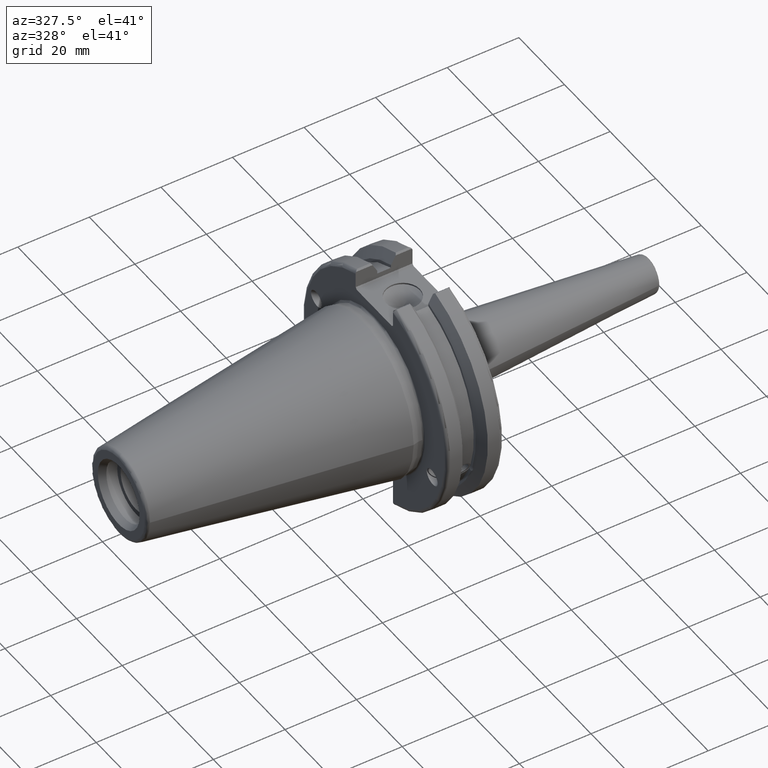
[diagram: clean part render]
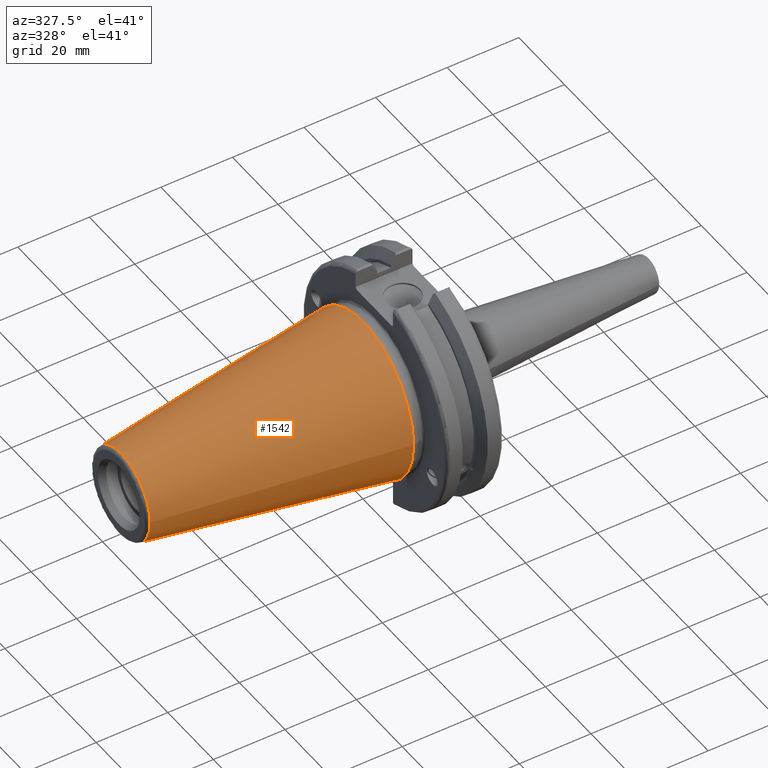
[diagram: same view with one face highlighted and labeled with its STEP entity id]
A machine part, auxiliary view. The second image highlights one B-rep face of the part: STEP entity #1542.
In plain terms, the highlighted conical surface has half-angle 8.297 deg.
Its self-contained STEP definition (entity closure, byte-faithful):
#233=LINE('',#2928,#329);
#329=VECTOR('',#2128,17.2484375);
#358=CONICAL_SURFACE('',#1731,17.2484375,0.144812498238939);
#422=FACE_OUTER_BOUND('',#521,.T.);
#521=EDGE_LOOP('',(#1344,#1345,#1346,#1347,#1348));
#608=CIRCLE('',#1725,12.3966635780937);
#609=CIRCLE('',#1726,12.3966635780937);
#613=CIRCLE('',#1732,22.225);
#762=VERTEX_POINT('',#2915);
#763=VERTEX_POINT('',#2916);
#766=VERTEX_POINT('',#2926);
#971=EDGE_CURVE('',#762,#763,#608,.T.);
#972=EDGE_CURVE('',#763,#762,#609,.T.);
#976=EDGE_CURVE('',#766,#766,#613,.T.);
#977=EDGE_CURVE('',#766,#763,#233,.T.);
#1344=ORIENTED_EDGE('',*,*,#976,.F.);
#1345=ORIENTED_EDGE('',*,*,#977,.T.);
#1346=ORIENTED_EDGE('',*,*,#971,.F.);
#1347=ORIENTED_EDGE('',*,*,#972,.F.);
#1348=ORIENTED_EDGE('',*,*,#977,.F.);
#1542=ADVANCED_FACE('',(#422),#358,.T.);
#1725=AXIS2_PLACEMENT_3D('',#2917,#2112,#2113);
#1726=AXIS2_PLACEMENT_3D('',#2918,#2114,#2115);
#1731=AXIS2_PLACEMENT_3D('',#2925,#2124,#2125);
#1732=AXIS2_PLACEMENT_3D('',#2927,#2126,#2127);
#2112=DIRECTION('center_axis',(-1.,0.,0.));
#2113=DIRECTION('ref_axis',(0.,-1.,3.06161699786838E-17));
#2114=DIRECTION('center_axis',(-1.,0.,0.));
#2115=DIRECTION('ref_axis',(0.,-1.,3.06161699786838E-17));
#2124=DIRECTION('center_axis',(1.,0.,0.));
#2125=DIRECTION('ref_axis',(0.,1.,0.));
#2126=DIRECTION('center_axis',(1.,0.,0.));
#2127=DIRECTION('ref_axis',(0.,0.,-1.));
#2128=DIRECTION('',(-0.989532981063282,0.144306893071729,1.76724974695192E-17));
#2915=CARTESIAN_POINT('',(-67.3943068930717,-1.5181534371019E-15,12.3966635780937));
#2916=CARTESIAN_POINT('',(-67.3943068930718,-12.3966635780937,-1.5181534371019E-15));
#2917=CARTESIAN_POINT('Origin',(-67.3943068930717,0.,-1.89769179637738E-15));
#2918=CARTESIAN_POINT('Origin',(-67.3943068930717,0.,-1.89769179637738E-15));
#2925=CARTESIAN_POINT('Origin',(-34.125,0.,0.));
#2926=CARTESIAN_POINT('',(0.,-22.225,-2.72177751110499E-15));
#2927=CARTESIAN_POINT('Origin',(0.,0.,0.));
#2928=CARTESIAN_POINT('',(-34.125,-17.2484375,-2.11232437746682E-15));